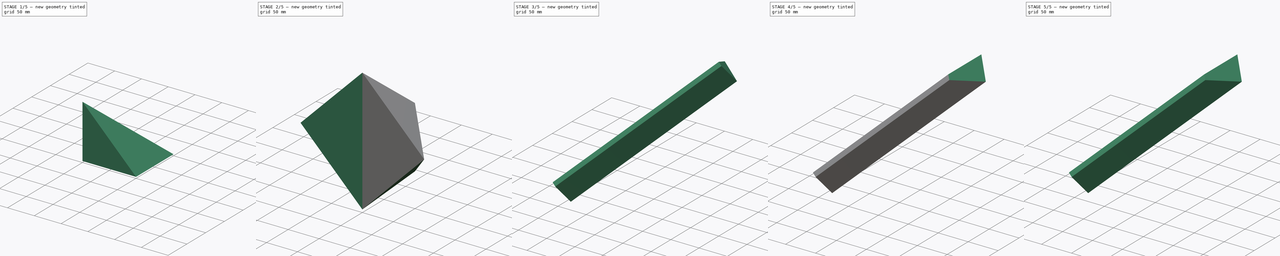
[diagram: build sequence overview — one tinted view per stage of 5, left to right]
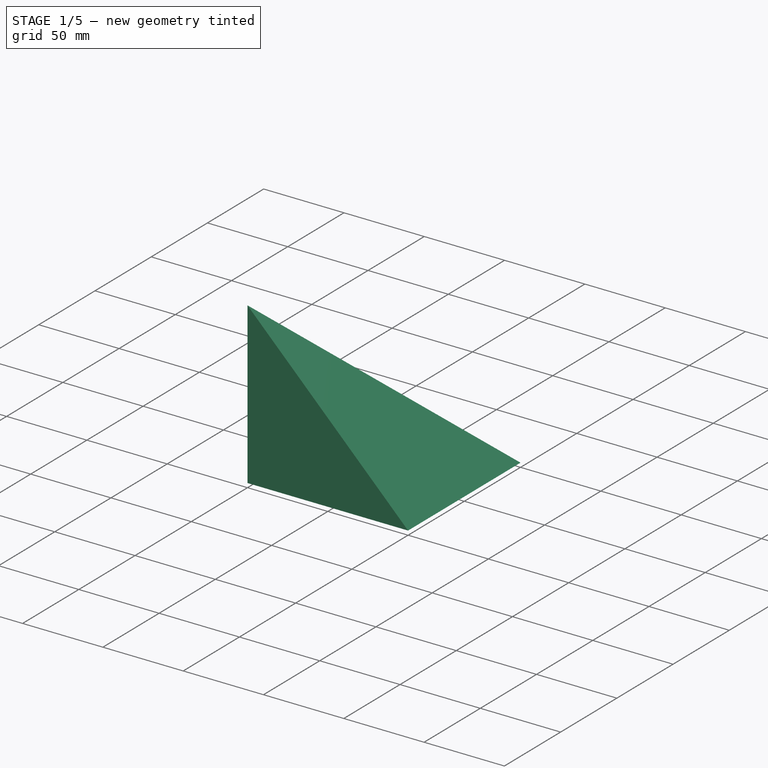
[diagram: stage 1 of 5 — iso view after this stage's code; geometry added in this stage tinted green]
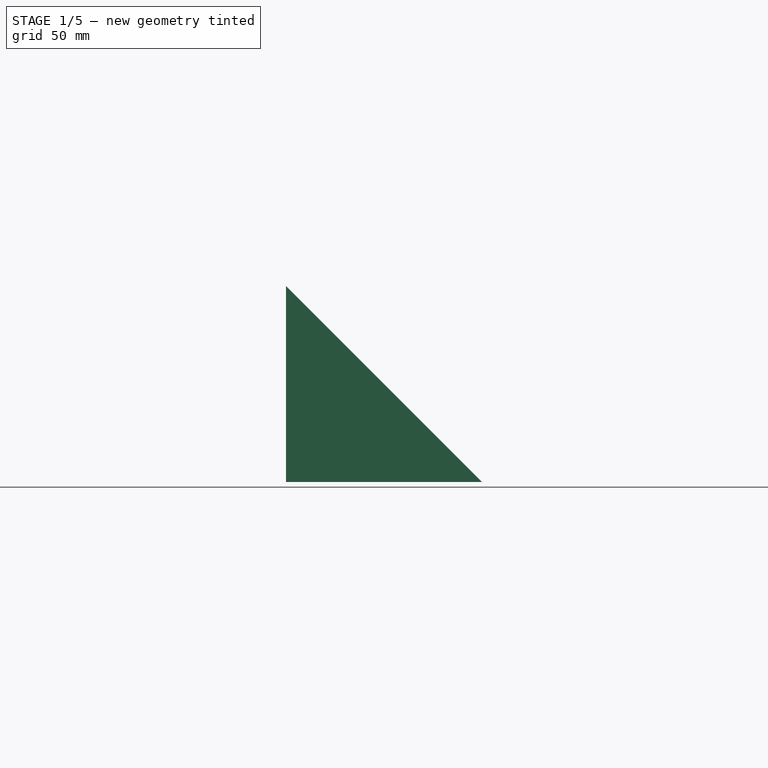
[diagram: stage 1 of 5 — front view after this stage's code; geometry added in this stage tinted green]
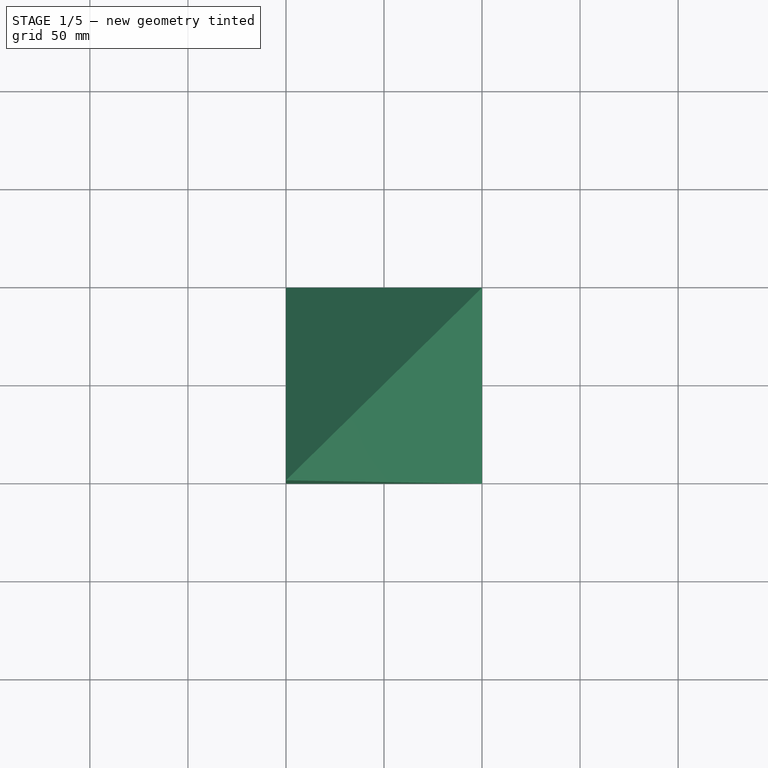
[diagram: stage 1 of 5 — top view after this stage's code; geometry added in this stage tinted green]
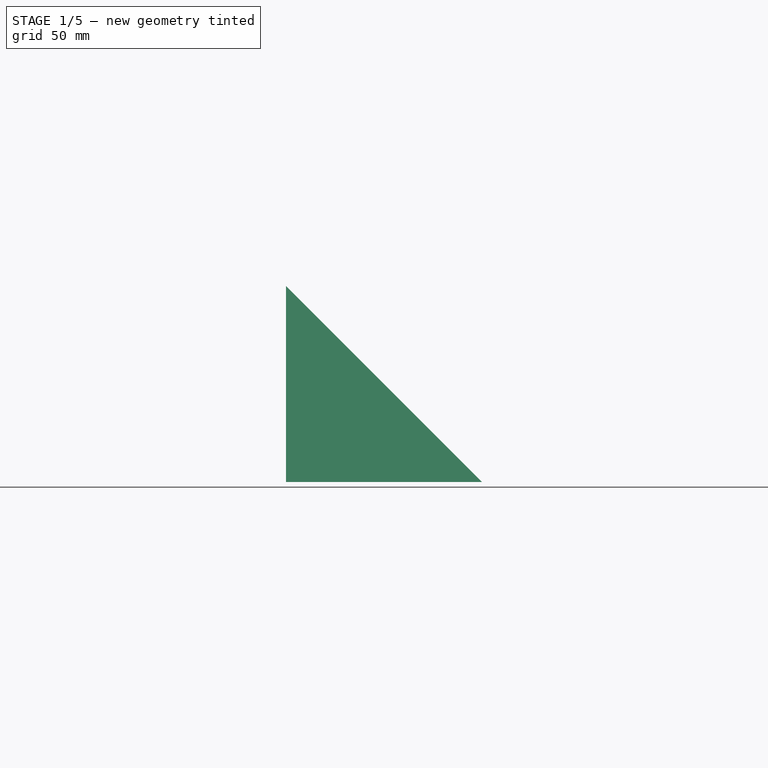
[diagram: stage 1 of 5 — right view after this stage's code; geometry added in this stage tinted green]
FCSTD DOCUMENT  (FreeCAD 1.0R39319 (Git))
Label: rhombic-dodecahedron6
License: All rights reserved
LicenseURL: https://en.wikipedia.org/wiki/All_rights_reserved
objects: PartDesign::Body×6, PartDesign::Plane×5, PartDesign::Pocket×5, PartDesign::FeatureBase×4, PartDesign::Mirrored×3, Sketcher::SketchObject×3, PartDesign::Pad×2, App::VarSet×1, PartDesign::AdditiveBox×1, PartDesign::SubShapeBinder×1, PartDesign::ShapeBinder×1, PartDesign::CoordinateSystem×1
note: 58 computed .brp shape members not serialized (recipe doc carries the construction recipe); baked Part::Feature solids carry a one-line shape summary decoded from their .brp

FEATURE [App::VarSet] VarSet
  Dode = 70.7107
  DodeSize = 100
  PicotDiam = 15
  PicotDiam2 = 15
  PicotLen = 15
  Tronque = 15
  longSide = 64.33
  expr: Dode = sqrt(2) * DodeSize * 0.5
FEATURE [PartDesign::AdditiveBox] Box
  AttacherType = Attacher::AttachEngine3D
  AttachmentSupport = -> [VarSet]
  Height = 100
  Length = 100
  Refine = true
  Suppressed = false
  Width = 100
  expr: Height = VarSet.DodeSize
  expr: Length = VarSet.DodeSize
  expr: Width = VarSet.DodeSize
FEATURE [PartDesign::Plane] DatumPlane
  AttachmentOffset = pos=(0,0,0) rot=(1,0,0;0.785398rad)
  AttachmentSupport = -> [Box]
  Length = 247.568
  MapMode = 47
  Placement = pos=(100,100,100) rot=(0,0.92388,-0.382683;3.14159rad)
  ResizeMode = 0
  Width = 330.411
FEATURE [PartDesign::Plane] DatumPlane001
  AttachmentOffset = pos=(0,0,0) rot=(-1,0,0;0.785398rad)
  AttachmentSupport = -> [Box]
  Length = 247.568
  MapMode = 47
  Placement = pos=(100,100,100) rot=(0.678598,-0.678598,-0.281085;2.59356rad)
  ResizeMode = 0
  Width = 330.411
FEATURE [PartDesign::Plane] DatumPlane002
  AttachmentOffset = pos=(0,0,0) rot=(1,0,0;0.785398rad)
  AttachmentSupport = -> [Box]
  Length = 247.568
  MapMode = 47
  Placement = pos=(100,100,100) rot=(0.678598,0.281085,-0.678598;2.59356rad)
  ResizeMode = 0
  Width = 330.411
FEATURE [PartDesign::Pocket] Pocket
  BaseFeature = -> Box
  Direction = (0,0.707107,0.707107)
  Length = 70.7107
  Length2 = 5
  Profile = -> DatumPlane
  Refine = true
  Reversed = true
  Suppressed = false
  Type = 0
  expr: Length = VarSet.Dode
FEATURE [PartDesign::Pocket] Pocket001
  BaseFeature = -> Pocket
  Direction = (0.707107,2e-16,0.707107)
  Length = 70.7107
  Length2 = 5
  Profile = -> DatumPlane001
  Refine = true
  Reversed = true
  Suppressed = false
  Type = 0
  expr: Length = VarSet.Dode
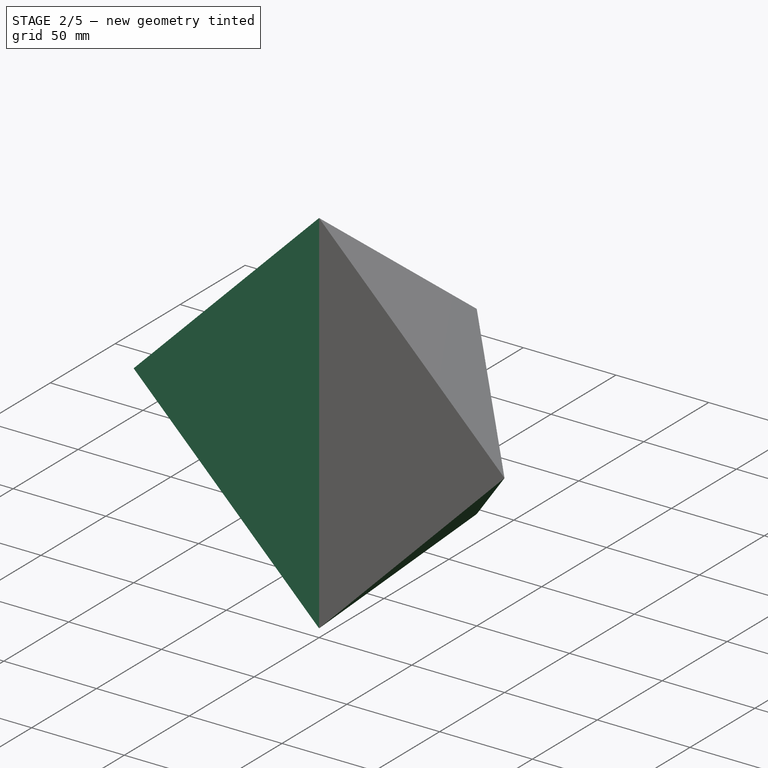
[diagram: stage 2 of 5 — iso view after this stage's code; geometry added in this stage tinted green]
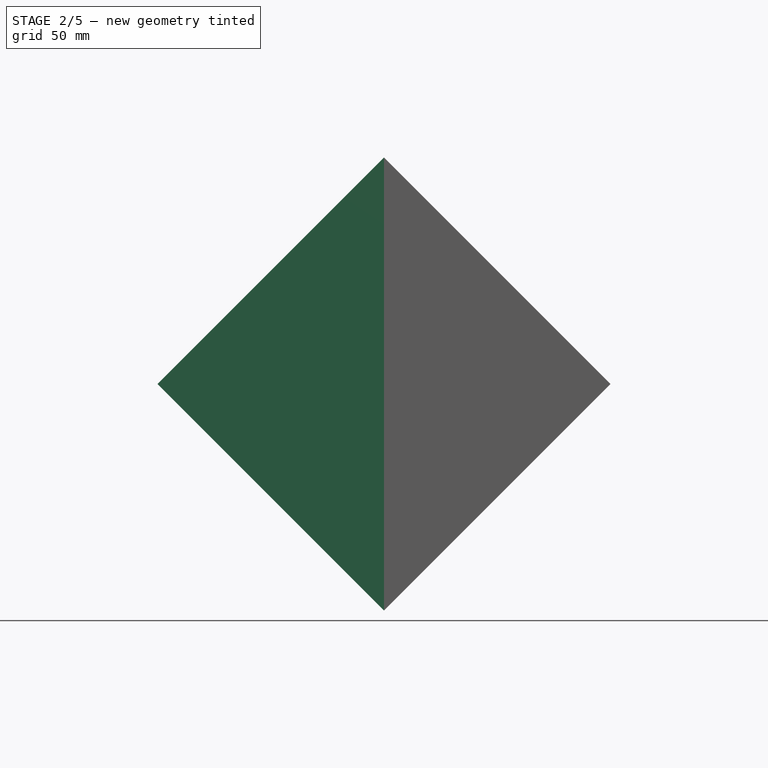
[diagram: stage 2 of 5 — front view after this stage's code; geometry added in this stage tinted green]
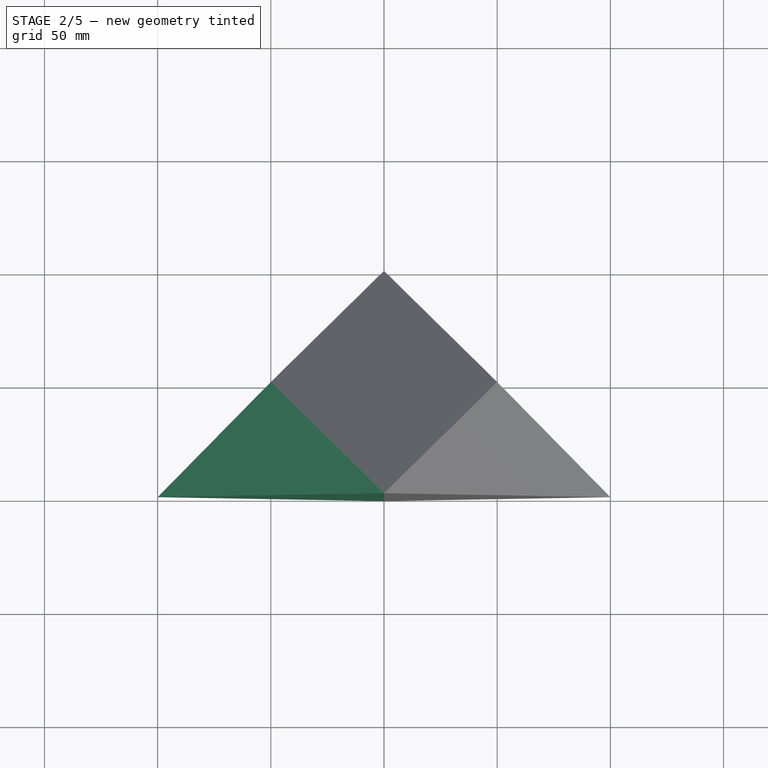
[diagram: stage 2 of 5 — top view after this stage's code; geometry added in this stage tinted green]
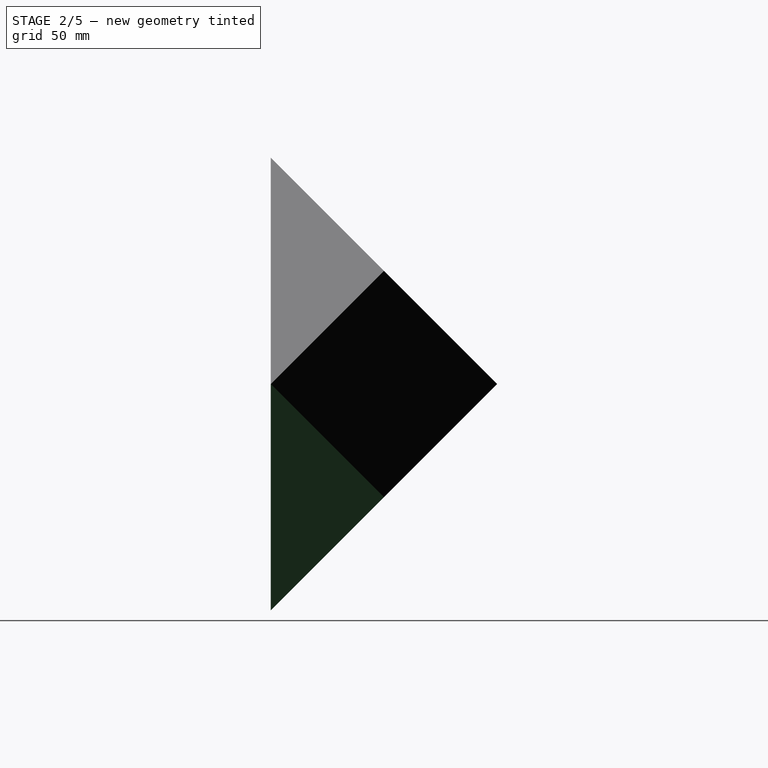
[diagram: stage 2 of 5 — right view after this stage's code; geometry added in this stage tinted green]
FEATURE [PartDesign::Pocket] Pocket002
  BaseFeature = -> Pocket001
  Direction = (0.707107,0.707107,0)
  Length = 70.7107
  Length2 = 5
  Profile = -> DatumPlane002
  Refine = true
  Reversed = true
  Suppressed = false
  Type = 0
  expr: Length = VarSet.Dode
FEATURE [PartDesign::Mirrored] Mirrored
  BaseFeature = -> Pocket002
  MirrorPlane = -> XY_Plane
  Refine = true
  Suppressed = false
  TransformMode = 1
FEATURE [PartDesign::Mirrored] Mirrored001
  BaseFeature = -> Mirrored
  MirrorPlane = -> YZ_Plane
  Refine = true
  Suppressed = false
  TransformMode = 1
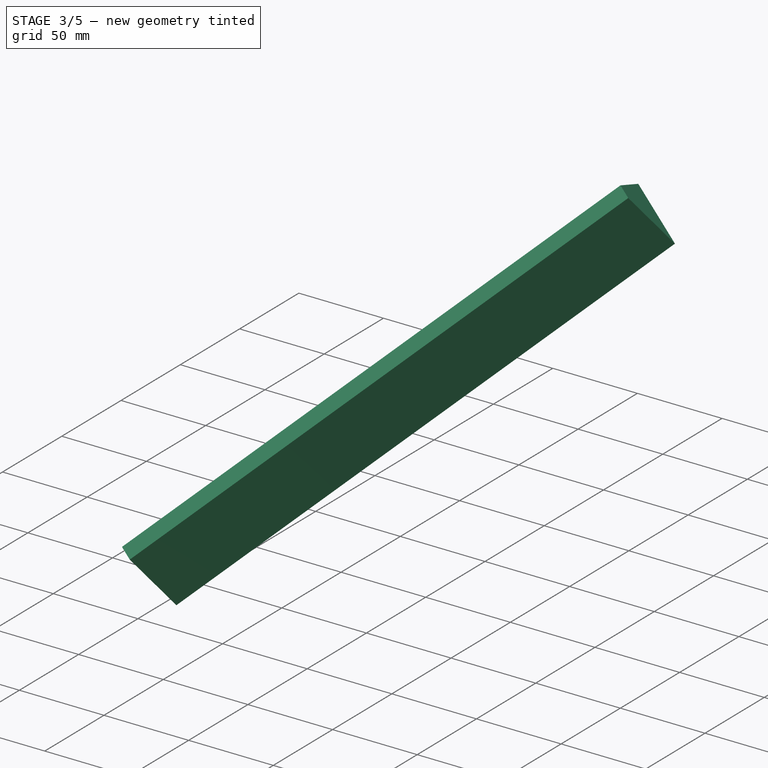
[diagram: stage 3 of 5 — iso view after this stage's code; geometry added in this stage tinted green]
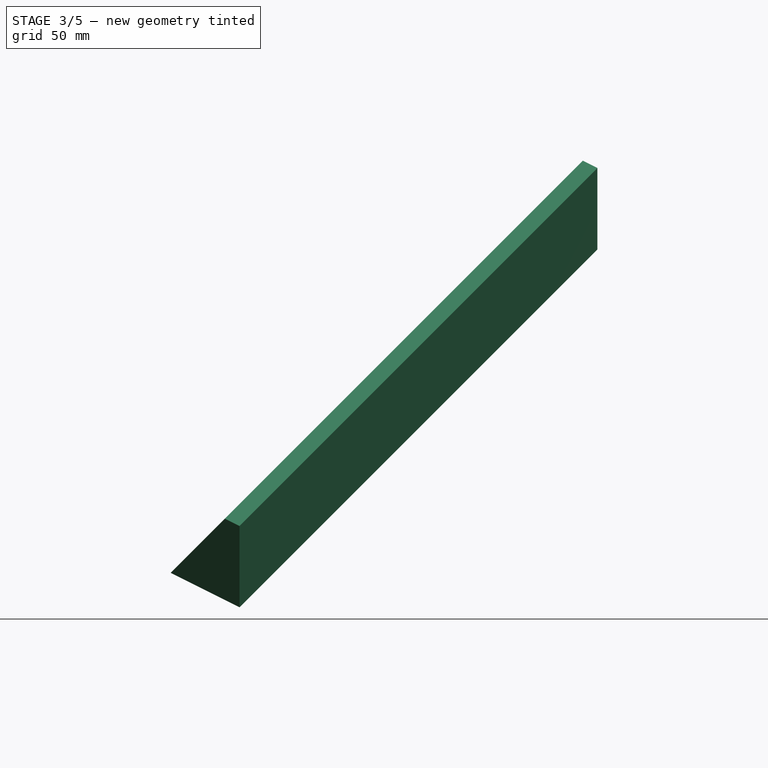
[diagram: stage 3 of 5 — front view after this stage's code; geometry added in this stage tinted green]
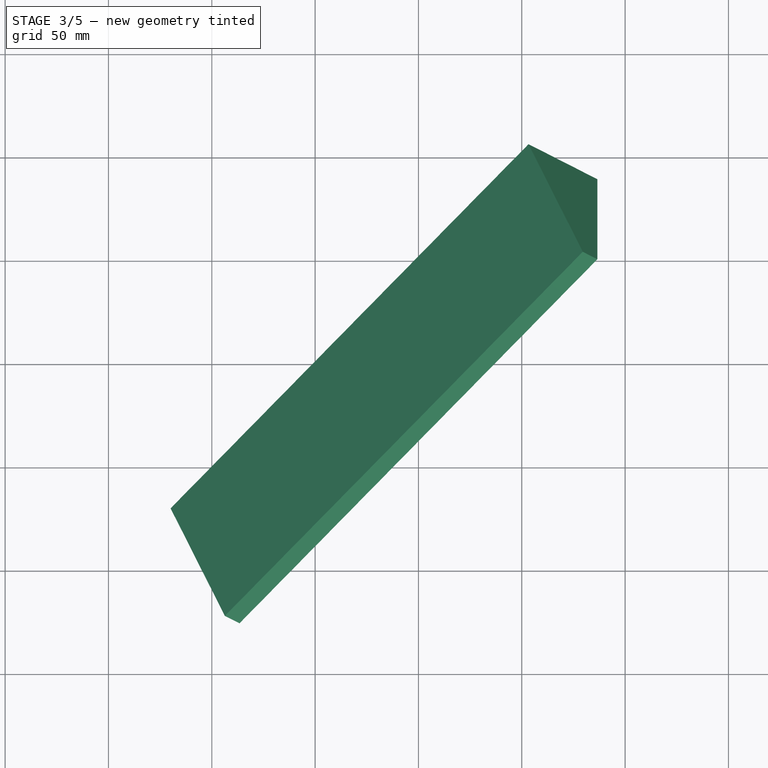
[diagram: stage 3 of 5 — top view after this stage's code; geometry added in this stage tinted green]
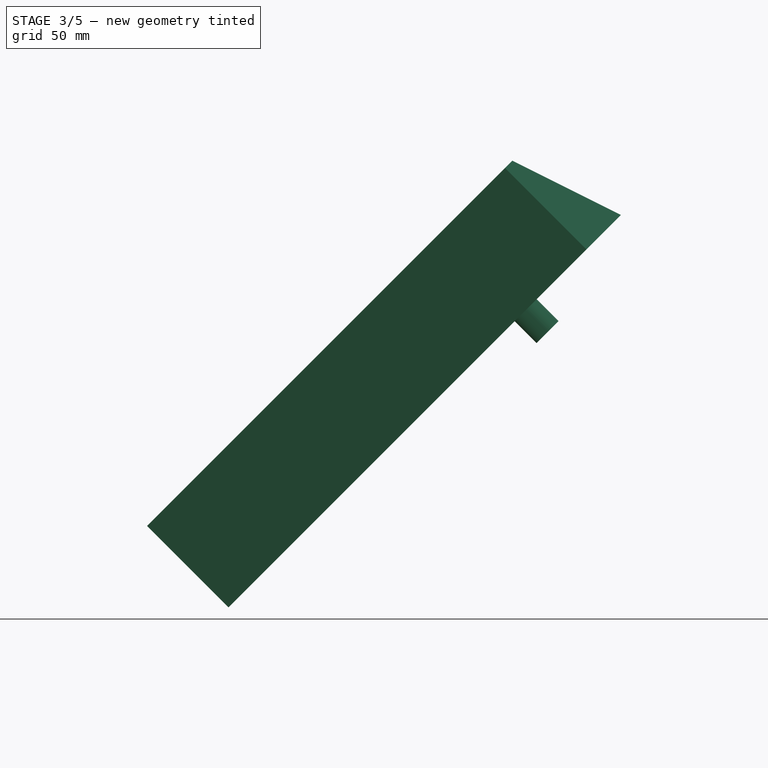
[diagram: stage 3 of 5 — right view after this stage's code; geometry added in this stage tinted green]
FEATURE [PartDesign::Mirrored] Mirrored002
  BaseFeature = -> Mirrored001
  MirrorPlane = -> XZ_Plane
  Refine = true
  Suppressed = false
  TransformMode = 1
FEATURE [PartDesign::Body] Body  label="rhombic-dodecahedron"
  AllowCompound = false
  Group = -> [Box,DatumPlane,DatumPlane001,DatumPlane002,Pocket,Pocket001,Pocket002,Mirrored,Mirrored001,Mirrored002]
  Origin = -> Origin
  Tip = -> Mirrored002
FEATURE [PartDesign::SubShapeBinder] Binder001
  BindCopyOnChange = 0
  BindMode = 0
  ClaimChildren = false
  Context = -> Body002 [Binder001.]
  Fuse = false
  MakeFace = true
  OffsetFill = false
  OffsetIntersection = false
  OffsetJoinType = 0
  OffsetOpenResult = false
  PartialLoad = false
  Refine = true
  Relative = true
  Support = -> [Body[Mirrored002.]]
  _Version = 2
FEATURE [Sketcher::SketchObject] Sketch001  label="sketch-picot"
  ArcFitTolerance = 1e-06
  AttachmentSupport = -> [Binder001]
  ExternalGeometry = -> [Binder001]
  FullyConstrained = false
  MakeInternals = false
  MapMode = 5
  Placement = pos=(0,-50,50) rot=(1,0,0;0.785398rad)
  expr: Constraints[25] = VarSet.PicotDiam
  expr: Constraints[29] = VarSet.longSide
  sketch-geometry (13):
    g0: LineSegment StartX=-33.3333 StartY=23.5702 StartZ=0 EndX=33.3333 EndY=-23.5702 EndZ=0
    g1: GeomPoint X=0 Y=0 Z=0
    g2: LineSegment StartX=0 StartY=0 StartZ=0 EndX=-25 EndY=-35.3553 EndZ=0
    g3: LineSegment [constr] StartX=-2.84e-14 StartY=70.7107 StartZ=0 EndX=39.3939 EndY=126.422 EndZ=0
    g4: LineSegment [constr] StartX=39.3939 StartY=126.422 StartZ=0 EndX=89.3939 EndY=55.7114 EndZ=0
    g5: LineSegment [constr] StartX=89.3939 StartY=55.7114 StartZ=0 EndX=50 EndY=1.42e-14 EndZ=0
    g6: LineSegment [constr] StartX=0 StartY=6.2e-15 StartZ=0 EndX=21.2154 EndY=30.0031 EndZ=0
    g7: LineSegment [constr] StartX=64.3939 StartY=91.0668 StartZ=0 EndX=21.2154 EndY=30.0031 EndZ=0
    g8: LineSegment [constr] StartX=-0.803511 StartY=71.847 StartZ=0 EndX=64.3939 EndY=91.0668 EndZ=0
    g9: LineSegment [constr] StartX=39.3939 StartY=126.422 StartZ=0 EndX=25 EndY=35.3553 EndZ=0
    g10: GeomPoint [constr] X=32.3108 Y=81.6089 Z=0
    g11: Circle CenterX=32.197 CenterY=80.8887 CenterZ=0 NormalX=0 NormalY=0 NormalZ=1 AngleXU=0 Radius=7.5
    g12: LineSegment [constr] StartX=36.8687 StartY=18.5705 StartZ=0 EndX=89.3939 EndY=55.7114 EndZ=0
  constraints (32):
    c: PointOnObject(g0,g-6)
    c: PointOnObject(g0,g-4)
    c: Perpendicular(g0,g-6)
    c: PointOnObject(g-1,g0)
    c: Coincident(g1,g-1)
    c: Coincident(g2,g1)
    c: Symmetric(g-5,g-5,g2)
    c: Distance(g0,g0) = 81.6497
    c: Coincident(g-6,g3)
    c: Coincident(g3,g4)
    c: Coincident(g4,g5)
    c: Coincident(g5,g-4)
    c: Parallel(g3,g-6)
    c: Parallel(g5,g-4)
    c: Parallel(g-3,g4)
    c: PointOnObject(g6,g-2)
    c: Symmetric(g4,g4,g7)
    c: Coincident(g7,g6)
    c: Parallel(g2,g6)
    c: Parallel(g7,g2)
    c: PointOnObject(g8,g-3)
    c: Symmetric(g4,g4,g8)
    c: Symmetric(g-3,g-3,g9)
    c: PointOnObject(g10,g8)
    c: PointOnObject(g10,g9)
    c: Diameter(g11) = 15
    c: Symmetric(g9,g9,g11)
    c: PointOnObject(g12,g-3)
    c: Perpendicular(g-3,g12)
    c: Distance(g12) = 64.33
    c: Coincident(g3,g9)
    c: Coincident(g4,g12)
FEATURE [PartDesign::Plane] DatumPlane005  label="DatumPlane-profil"
  AttachmentSupport = -> [Sketch001]
  Length = 485.89
  MapMode = 47
  Placement = pos=(0,-50,50) rot=(0.945607,-0.124491,-0.300549;2.39496rad)
  ResizeMode = 0
  Width = 472.114
FEATURE [Sketcher::SketchObject] Sketch002  label="Profil"
  ArcFitTolerance = 1e-06
  AttachmentSupport = -> [DatumPlane005]
  ExternalGeometry = -> [Sketch001,Binder001]
  FullyConstrained = true
  MakeInternals = false
  MapMode = 5
  Placement = pos=(2.1e-15,-50,50) rot=(0.945607,-0.124491,-0.300549;2.39496rad)
  expr: .Constraints.tronque = VarSet.Tronque
  sketch-geometry (9):
    g0: LineSegment [constr] StartX=40.8248 StartY=5.68e-14 StartZ=0 EndX=0 EndY=70.7107 EndZ=0
    g1: LineSegment [constr] StartX=40.8248 StartY=5.68e-14 StartZ=0 EndX=-40.8248 EndY=1.42e-14 EndZ=0
    g2: LineSegment [constr] StartX=-40.8248 StartY=1.42e-14 StartZ=0 EndX=0 EndY=70.7107 EndZ=0
    g3: GeomPoint [constr] X=0 Y=55.7107 Z=0
    g4: GeomPoint [constr] X=-8.66025 Y=55.7107 Z=0
    g5: LineSegment StartX=0 StartY=0 StartZ=0 EndX=0 EndY=55.7107 EndZ=0
    g6: LineSegment StartX=-8.66025 StartY=55.7107 StartZ=0 EndX=-40.8248 EndY=1.42e-14 EndZ=0
    g7: LineSegment StartX=-8.66025 StartY=55.7107 StartZ=0 EndX=0 EndY=55.7107 EndZ=0
    g8: LineSegment StartX=-40.8248 StartY=1.42e-14 StartZ=0 EndX=0 EndY=0 EndZ=0
  constraints (22):
    c: Coincident(g0,g-5)
    c: Coincident(g1,g0)
    c: Coincident(g1,g-4)
    c: Coincident(g2,g1)
    c: Coincident(g2,g0)
    c: Equal(g1,g0)
    c: PointOnObject(g0,g-2)
    c: PointOnObject(g3,g-2)
    c: DistanceY(g3,g0) = 15  'tronque'
    c: PointOnObject(g4,g2)
    c: Horizontal(g3,g4)
    c: Coincident(g5,g-1)
    c: Coincident(g5,g3)
    c: Coincident(g6,g4)
    c: Coincident(g6,g1)
    c: Coincident(g7,g4)
    c: Coincident(g7,g3)
    c: Coincident(g8,g1)
    c: Coincident(g8,g5)
    c: Distance(g4,g1) = 64.3292  'longSide'
    c: Distance(g5,g1) = 40.8248  'shortSide'
    c: Distance(g5) = 55.7107  'Hauteur'
FEATURE [PartDesign::Pad] Pad001  label="Pad-profil"
  Direction = (-0.57735,-0.57735,-0.57735)
  Length = 300
  Length2 = 10
  Midplane = true
  Placement = pos=(0,-50,50) rot=(0.945607,-0.124491,-0.300549;2.39496rad)
  Profile = -> Sketch002
  ReferenceAxis = -> Sketch002 [N_Axis]
  Refine = true
  Suppressed = false
  Type = 0
FEATURE [PartDesign::Pad] Pad  label="picot"
  BaseFeature = -> Pad001
  Direction = (0,-0.707107,0.707107)
  Length = 15
  Length2 = 10
  Placement = pos=(0,-50,50) rot=(0.945607,-0.124491,-0.300549;2.39496rad)
  Profile = -> Sketch001 [Edge3]
  ReferenceAxis = -> Sketch001 [N_Axis]
  Refine = true
  Reversed = true
  Suppressed = false
  Type = 0
  expr: Length = VarSet.PicotLen
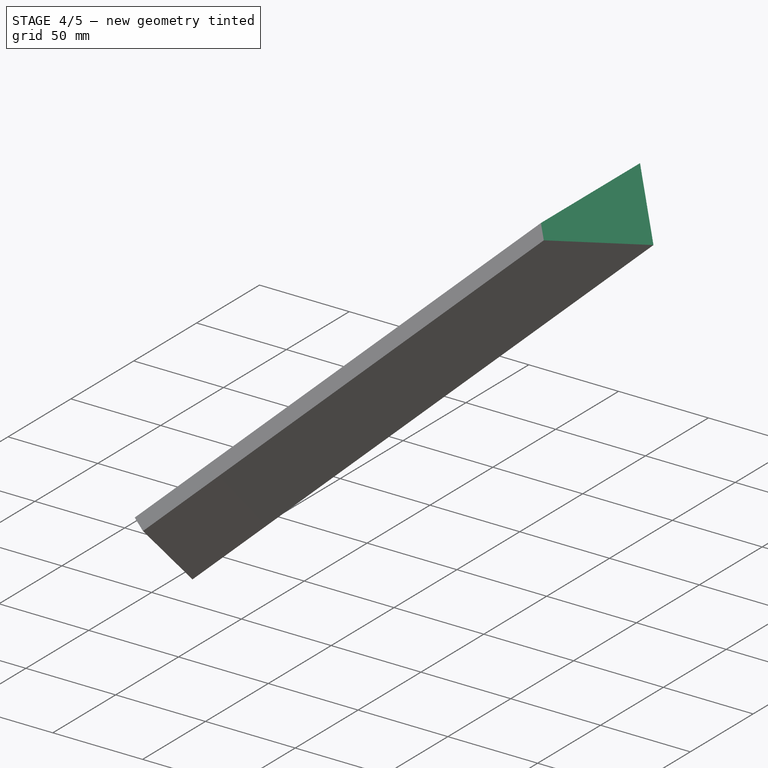
[diagram: stage 4 of 5 — iso view after this stage's code; geometry added in this stage tinted green]
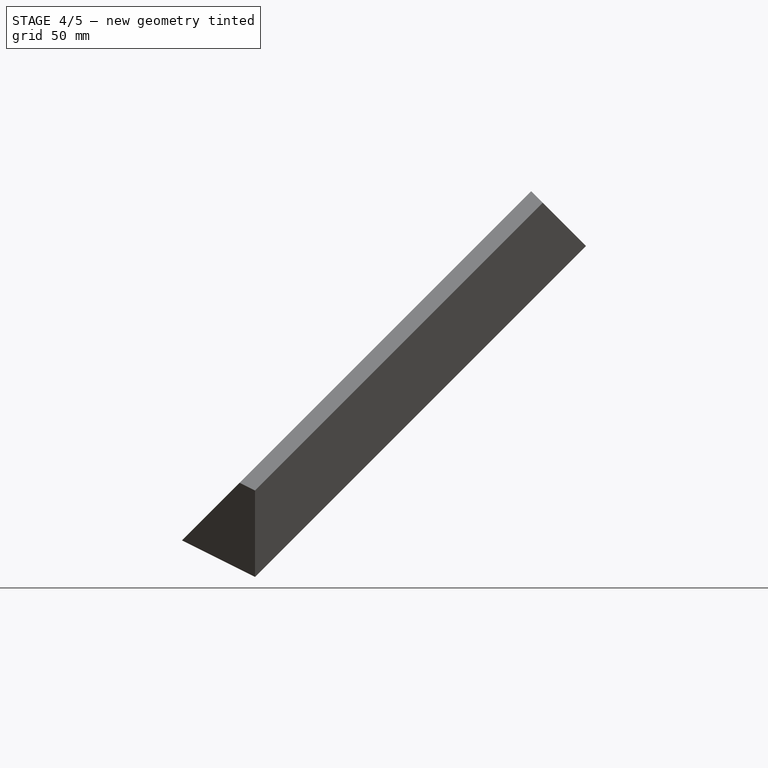
[diagram: stage 4 of 5 — front view after this stage's code; geometry added in this stage tinted green]
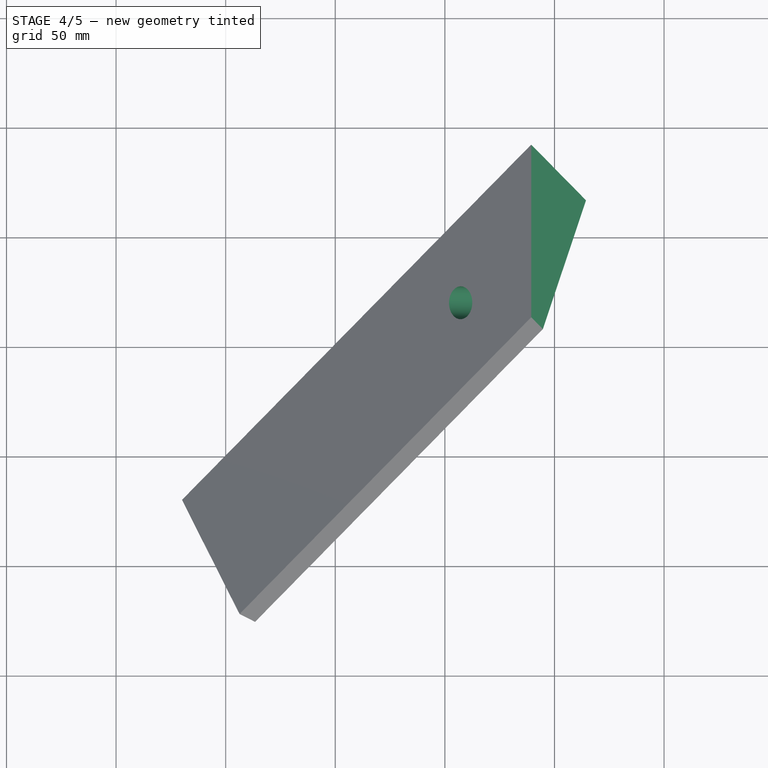
[diagram: stage 4 of 5 — top view after this stage's code; geometry added in this stage tinted green]
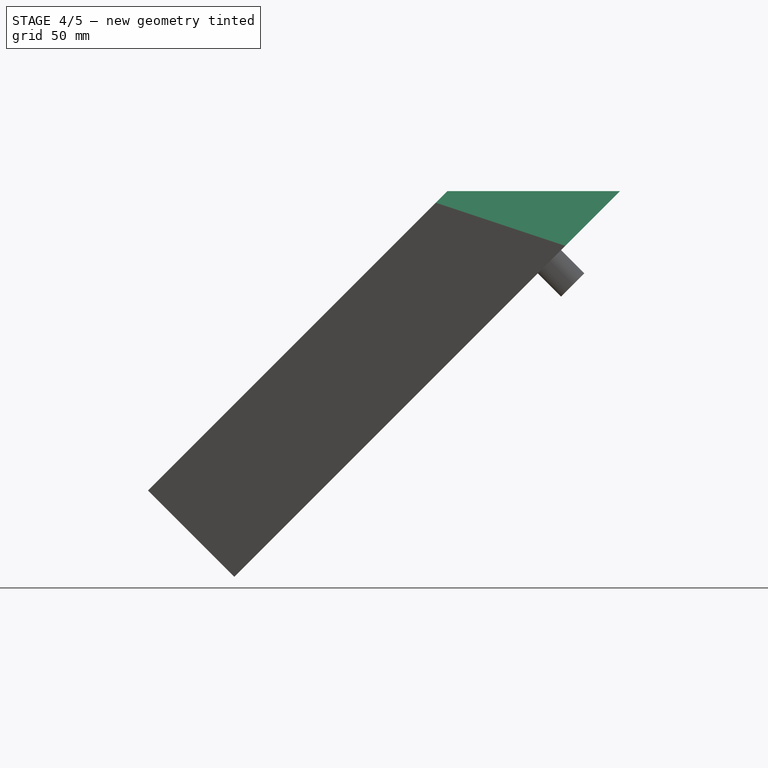
[diagram: stage 4 of 5 — right view after this stage's code; geometry added in this stage tinted green]
FEATURE [Sketcher::SketchObject] Sketch003  label="trou"
  ArcFitTolerance = 1e-06
  AttachmentSupport = -> [Pad]
  ExternalGeometry = -> [Binder001,Pad]
  FullyConstrained = true
  MakeInternals = false
  MapMode = 5
  Placement = pos=(-25,-50,75) rot=(-0.375389,-0.194316,0.90627;2.26431rad)
  expr: Constraints[20] = VarSet.PicotDiam2
  sketch-geometry (9):
    g0: LineSegment [constr] StartX=20.4124 StartY=28.8675 StartZ=0 EndX=20.4124 EndY=-14.4338 EndZ=0
    g1: LineSegment [constr] StartX=20.4124 StartY=-14.4338 StartZ=0 EndX=20.4124 EndY=-57.735 EndZ=0
    g2: LineSegment [constr] StartX=20.4124 StartY=-57.735 StartZ=0 EndX=-43.9167 EndY=-80.4788 EndZ=0
    g3: LineSegment [constr] StartX=-43.9167 StartY=-80.4788 StartZ=0 EndX=-43.9167 EndY=-37.1775 EndZ=0
    g4: LineSegment [constr] StartX=-43.9167 StartY=-37.1775 StartZ=0 EndX=20.4124 EndY=-14.4338 EndZ=0
    g5: LineSegment [constr] StartX=-43.9167 StartY=-37.1775 StartZ=0 EndX=20.4124 EndY=-57.735 EndZ=0
    g6: LineSegment [constr] StartX=20.4124 StartY=-14.4338 StartZ=0 EndX=-43.9167 EndY=-80.4788 EndZ=0
    g7: GeomPoint [constr] X=-11.7522 Y=-47.4563 Z=0
    g8: Circle CenterX=-11.7522 CenterY=-47.4563 CenterZ=0 NormalX=0 NormalY=0 NormalZ=1 AngleXU=0 Radius=7.5
  constraints (21):
    c: Coincident(g-3,g0)
    c: Vertical(g0)
    c: Coincident(g0,g1)
    c: Coincident(g1,g-4)
    c: Coincident(g1,g2)
    c: PointOnObject(g2,g-5)
    c: Coincident(g2,g3)
    c: PointOnObject(g3,g-5)
    c: Coincident(g3,g4)
    c: Coincident(g4,g0)
    c: Parallel(g-4,g2)
    c: Parallel(g4,g-4)
    c: Equal(g1,g0)
    c: Coincident(g5,g3)
    c: Coincident(g5,g1)
    c: Coincident(g6,g0)
    c: Coincident(g6,g2)
    c: PointOnObject(g7,g5)
    c: PointOnObject(g7,g6)
    c: Coincident(g8,g7)
    c: Diameter(g8) = 15
FEATURE [PartDesign::Pocket] Pocket003  label="pocket-trou"
  BaseFeature = -> Pad
  Direction = (0.707107,1e-16,-0.707107)
  Length = 15
  Length2 = 5
  Placement = pos=(0,-50,50) rot=(0.945607,-0.124491,-0.300549;2.39496rad)
  Profile = -> Sketch003 [Edge1]
  ReferenceAxis = -> Sketch003 [N_Axis]
  Refine = true
  Suppressed = false
  Type = 0
  expr: Length = VarSet.PicotLen
FEATURE [PartDesign::Plane] DatumPlane006  label="cut1"
  AttachmentOffset = pos=(0,0,155.711) rot=(0,0,1;0rad)
  AttachmentSupport = -> [Binder001]
  Length = 415.046
  MapMode = 5
  Placement = pos=(160.104,0,160.104) rot=(0,1,0;0.785398rad)
  ResizeMode = 0
  Width = 338.391
  expr: .AttachmentOffset.Base.z = <<Profil>>.Constraints.Hauteur + 100 mm
FEATURE [PartDesign::Pocket] Pocket004  label="cut1-pocket"
  BaseFeature = -> Pocket003
  Direction = (-0.707107,0,-0.707107)
  Length = 100
  Length2 = 5
  Placement = pos=(0,-50,50) rot=(0.945607,-0.124491,-0.300549;2.39496rad)
  Profile = -> DatumPlane006
  Refine = true
  Suppressed = false
  Type = 0
FEATURE [PartDesign::Body] Body005
  AllowCompound = false
  Group = -> [Clone002]
  Origin = -> Origin005
  Placement = pos=(0,0,0) rot=(0,0,1;-1.5708rad)
  Tip = -> Clone002
FEATURE [PartDesign::FeatureBase] Clone003
  BaseFeature = -> Body002
  Suppressed = false
FEATURE [PartDesign::ShapeBinder] CopyBinder
  TraceSupport = false
FEATURE [PartDesign::CoordinateSystem] Local_CS
  AttacherType = Attacher::AttachEngine3D
  AttachmentSupport = -> [CopyBinder]
  MapMode = 5
  Placement = pos=(0,-50,50) rot=(1,0,0;0.785398rad)
FEATURE [PartDesign::Body] Body006  label="Retourne"
  AllowCompound = false
  Group = -> [Clone003,Local_CS,CopyBinder]
  Origin = -> Origin006
  Tip = -> Clone003
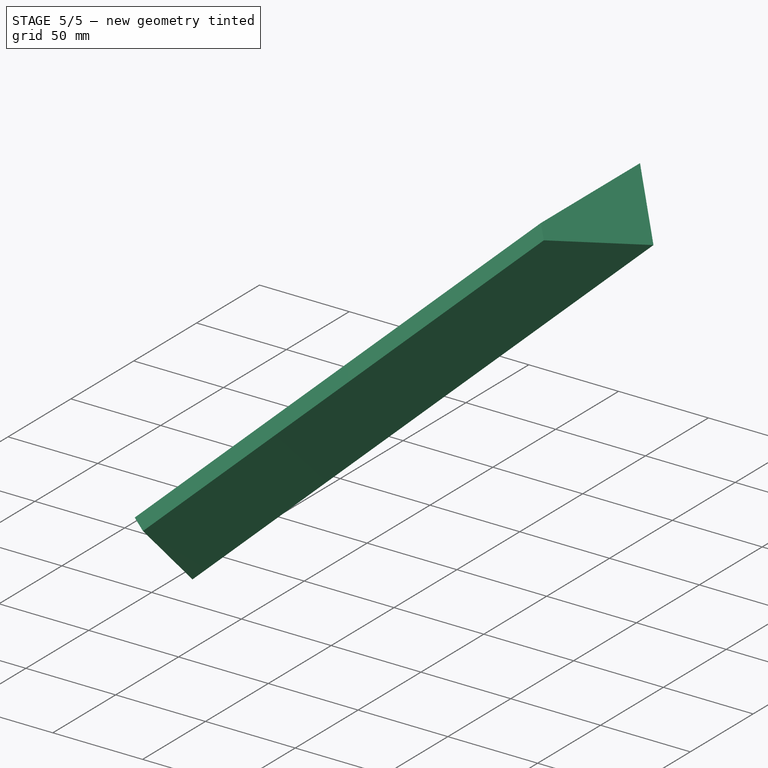
[diagram: stage 5 of 5 — iso view after this stage's code; geometry added in this stage tinted green]
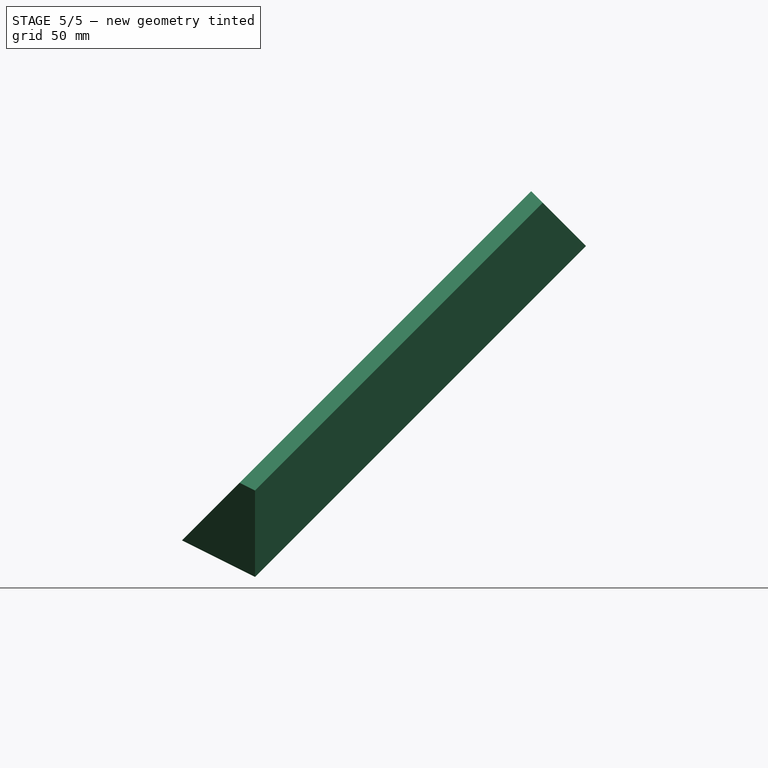
[diagram: stage 5 of 5 — front view after this stage's code; geometry added in this stage tinted green]
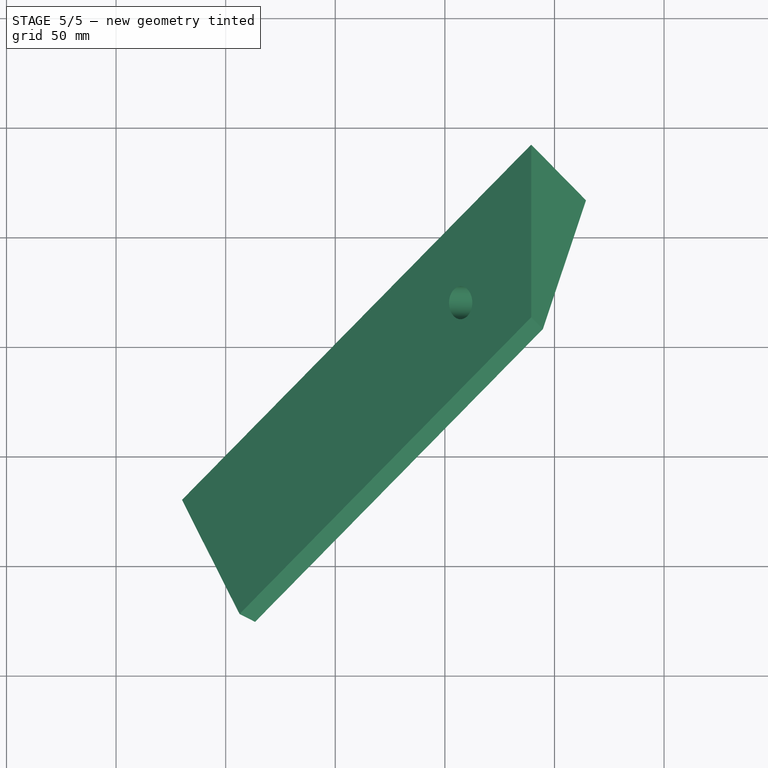
[diagram: stage 5 of 5 — top view after this stage's code; geometry added in this stage tinted green]
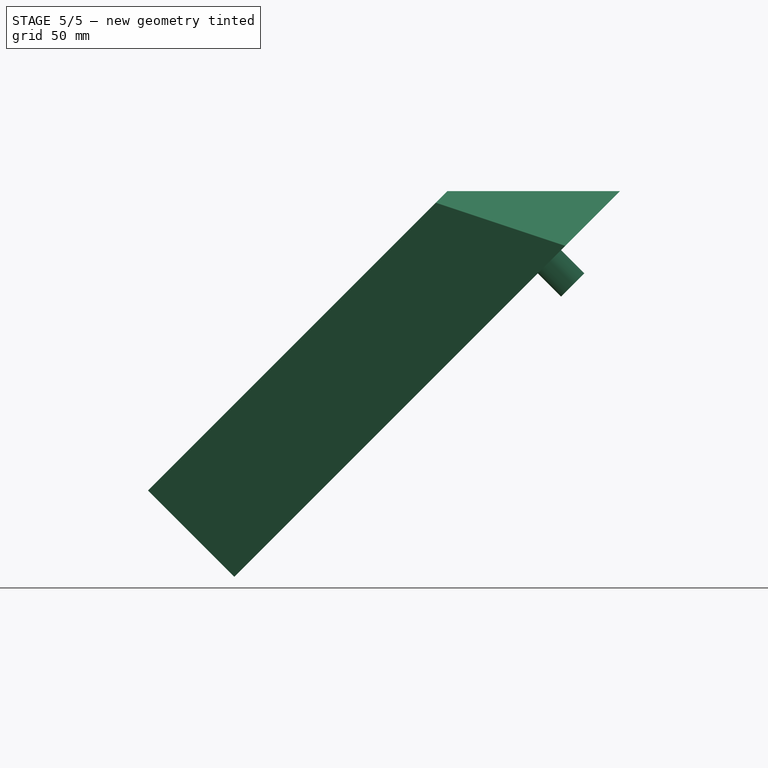
[diagram: stage 5 of 5 — right view after this stage's code; geometry added in this stage tinted green]
FEATURE [PartDesign::Body] Body002  label="piece"
  AllowCompound = false
  Group = -> [Binder001,Sketch001,DatumPlane005,Sketch002,Pad001,Pad,Sketch003,Pocket003,DatumPlane006,Pocket004]
  Origin = -> Origin002
  Tip = -> Pocket004
FEATURE [PartDesign::FeatureBase] Clone
  BaseFeature = -> Body002
  Suppressed = false
FEATURE [PartDesign::Body] Body003
  AllowCompound = false
  Group = -> [Clone]
  Origin = -> Origin003
  Placement = pos=(0,0,0) rot=(0,0,1;1.5708rad)
  Tip = -> Clone
FEATURE [PartDesign::FeatureBase] Clone001
  BaseFeature = -> Body002
  Suppressed = false
FEATURE [PartDesign::Body] Body004
  AllowCompound = false
  Group = -> [Clone001]
  Origin = -> Origin004
  Placement = pos=(0,0,0) rot=(0,0,1;3.14159rad)
  Tip = -> Clone001
FEATURE [PartDesign::FeatureBase] Clone002
  BaseFeature = -> Body002
  Suppressed = false
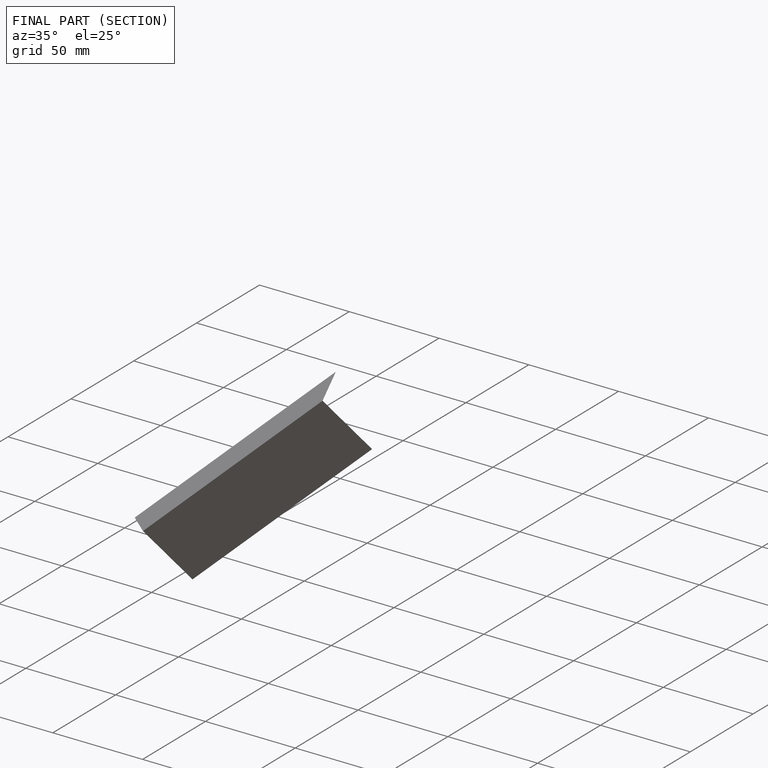
[diagram: finished part — half-section view (interior)]
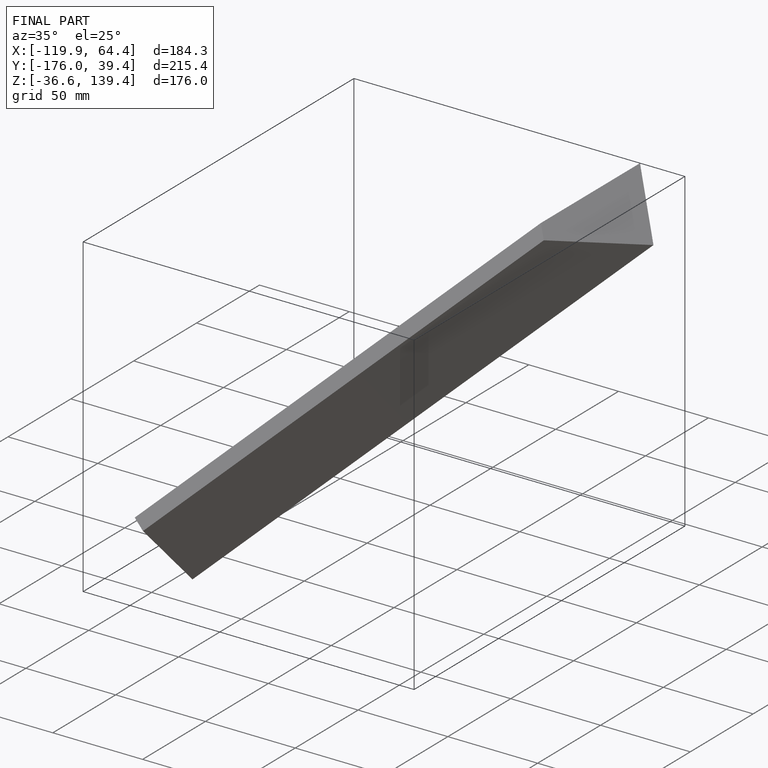
[diagram: finished part — iso view with bounding-box wireframe]
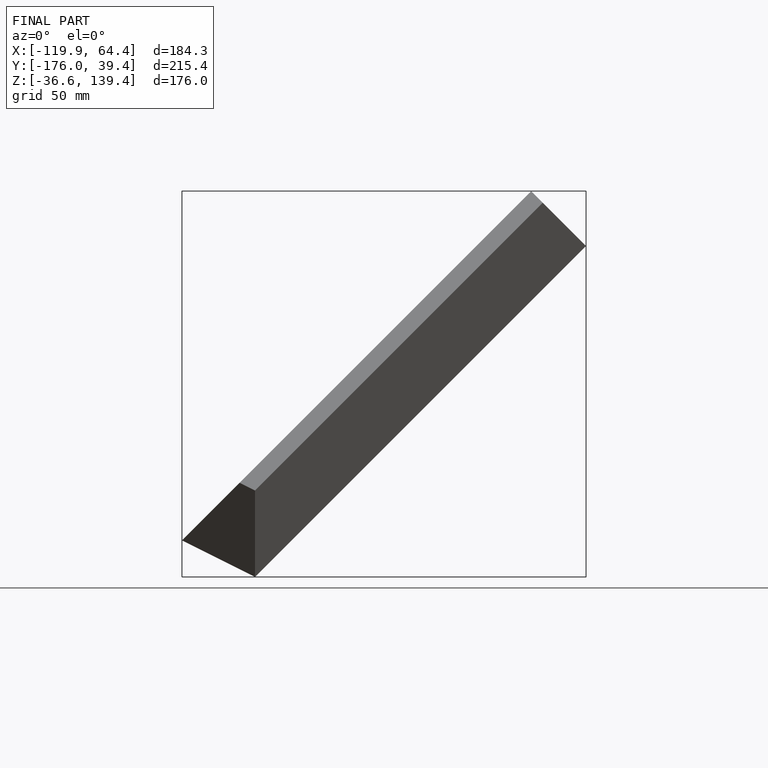
[diagram: finished part — front view with bounding-box wireframe]
